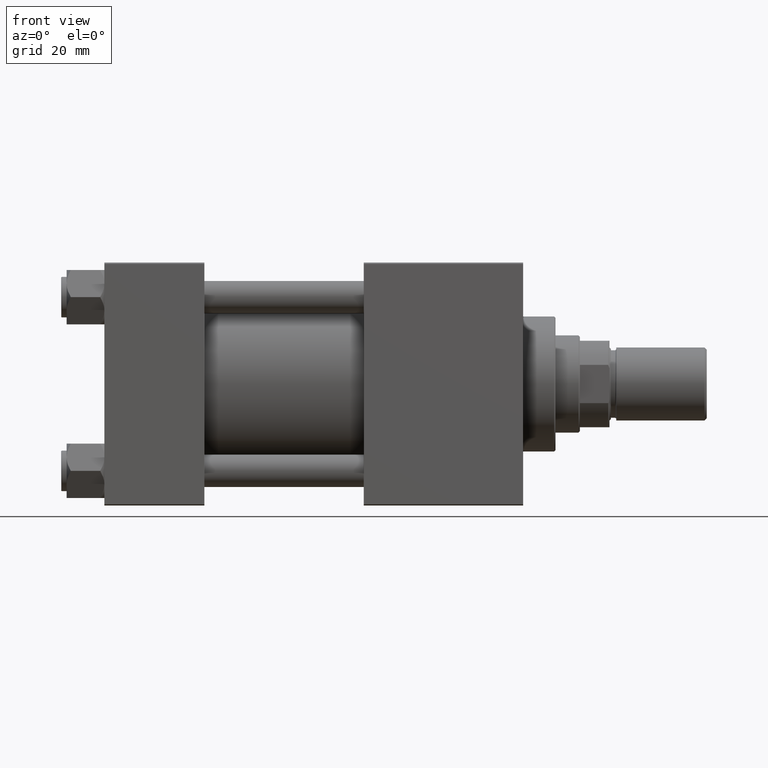
[diagram: clean part render]
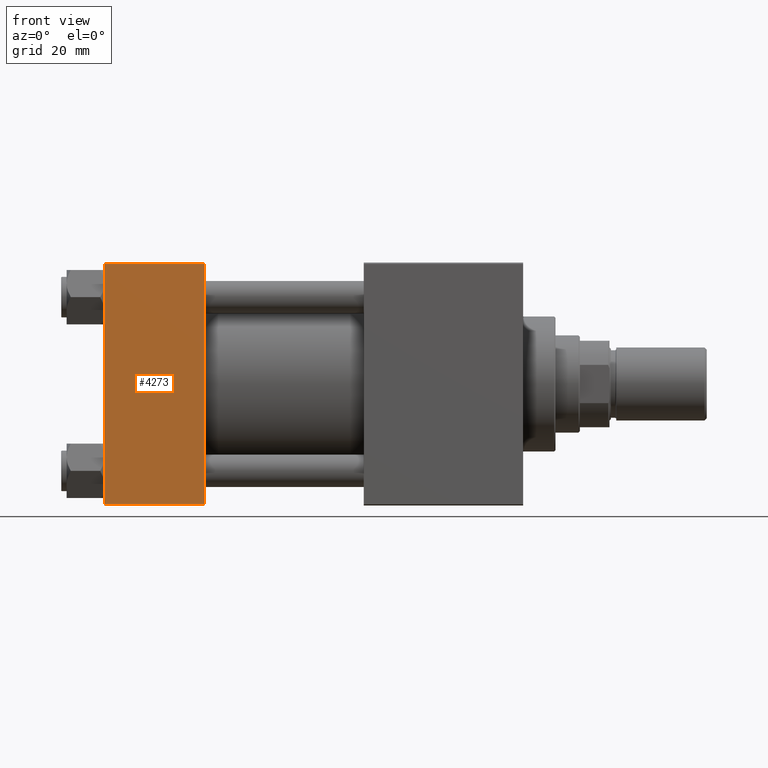
[diagram: same view with one face highlighted and labeled with its STEP entity id]
A machine part, front view. The second image highlights one B-rep face of the part: STEP entity #4273.
In plain terms, the highlighted planar face has unit normal (0, 1, 0).
Its self-contained STEP definition (entity closure, byte-faithful):
#1679 = EDGE_CURVE ( 'NONE', #10325, #33777, #8522, .T. ) ;
#2051 = ORIENTED_EDGE ( 'NONE', *, *, #20557, .T. ) ;
#4273 = ADVANCED_FACE ( 'NONE', ( #30197 ), #50195, .F. ) ;
#5806 = EDGE_CURVE ( 'NONE', #26984, #10325, #24312, .T. ) ;
#5848 = ORIENTED_EDGE ( 'NONE', *, *, #45112, .F. ) ;
#7528 = VERTEX_POINT ( 'NONE', #50499 ) ;
#8067 = CARTESIAN_POINT ( 'NONE',  ( 0.000000000000000000, -45.00000000000000000, -44.49999999999997158 ) ) ;
#8522 = LINE ( 'NONE', #9006, #36156 ) ;
#8919 = DIRECTION ( 'NONE',  ( -1.000000000000000000, 0.000000000000000000, 0.000000000000000000 ) ) ;
#9006 = CARTESIAN_POINT ( 'NONE',  ( 0.000000000000000000, -45.00000000000000000, 44.99999999999998579 ) ) ;
#9848 = DIRECTION ( 'NONE',  ( 0.000000000000000000, 0.000000000000000000, -1.000000000000000000 ) ) ;
#10325 = VERTEX_POINT ( 'NONE', #24944 ) ;
#10770 = EDGE_LOOP ( 'NONE', ( #25572, #2051, #5848, #49566 ) ) ;
#11213 = DIRECTION ( 'NONE',  ( 0.000000000000000000, -0.000000000000000000, 1.000000000000000000 ) ) ;
#12036 = DIRECTION ( 'NONE',  ( 1.000000000000000000, 0.000000000000000000, 0.000000000000000000 ) ) ;
#16461 = VECTOR ( 'NONE', #9848, 1000.000000000000000 ) ;
#17371 = AXIS2_PLACEMENT_3D ( 'NONE', #42764, #37901, #11213 ) ;
#19955 = CARTESIAN_POINT ( 'NONE',  ( 37.00000000000000000, -45.00000000000000000, 44.49999999999998579 ) ) ;
#20557 = EDGE_CURVE ( 'NONE', #33777, #7528, #35408, .T. ) ;
#20695 = VECTOR ( 'NONE', #8919, 1000.000000000000000 ) ;
#21368 = LINE ( 'NONE', #41133, #16461 ) ;
#23614 = CARTESIAN_POINT ( 'NONE',  ( 37.00000000000000000, -45.00000000000000000, 44.49999999999998579 ) ) ;
#24312 = LINE ( 'NONE', #19955, #20695 ) ;
#24944 = CARTESIAN_POINT ( 'NONE',  ( 0.000000000000000000, -45.00000000000000000, 44.49999999999998579 ) ) ;
#25572 = ORIENTED_EDGE ( 'NONE', *, *, #1679, .T. ) ;
#26984 = VERTEX_POINT ( 'NONE', #23614 ) ;
#30197 = FACE_OUTER_BOUND ( 'NONE', #10770, .T. ) ;
#33777 = VERTEX_POINT ( 'NONE', #8067 ) ;
#35408 = LINE ( 'NONE', #47189, #48652 ) ;
#36156 = VECTOR ( 'NONE', #43923, 1000.000000000000000 ) ;
#37901 = DIRECTION ( 'NONE',  ( -0.000000000000000000, 1.000000000000000000, 0.000000000000000000 ) ) ;
#41133 = CARTESIAN_POINT ( 'NONE',  ( 37.00000000000000000, -45.00000000000000000, 44.99999999999998579 ) ) ;
#42764 = CARTESIAN_POINT ( 'NONE',  ( 37.00000000000000000, -45.00000000000000000, 44.99999999999998579 ) ) ;
#43923 = DIRECTION ( 'NONE',  ( 0.000000000000000000, 0.000000000000000000, -1.000000000000000000 ) ) ;
#45112 = EDGE_CURVE ( 'NONE', #26984, #7528, #21368, .T. ) ;
#47189 = CARTESIAN_POINT ( 'NONE',  ( 37.00000000000000000, -45.00000000000000000, -44.50000000000000000 ) ) ;
#48652 = VECTOR ( 'NONE', #12036, 1000.000000000000000 ) ;
#49566 = ORIENTED_EDGE ( 'NONE', *, *, #5806, .T. ) ;
#50195 = PLANE ( 'NONE',  #17371 ) ;
#50499 = CARTESIAN_POINT ( 'NONE',  ( 37.00000000000000000, -45.00000000000000000, -44.49999999999997158 ) ) ;